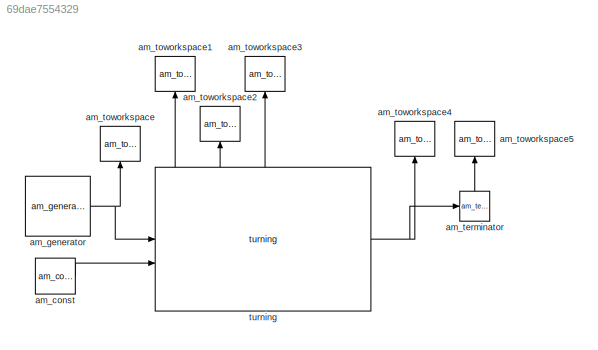
MODEL slx_69dae7554329
KIND model
CONFIG AbsTol = auto
CONFIG EnableMultiTasking = off
CONFIG FixedStep = auto
CONFIG MaxStep = auto
CONFIG MinStep = auto
CONFIG RelTol = 1e-3
CONFIG SampleTimeConstraint = Unconstrained
CONFIG SolverName = VariableStepAuto
CONFIG StartTime = 0.0
CONFIG StopTime = 10.0
BLOCK [Reference] am_const  REF=StdLib/am_const
  SourceBlock = StdLib/am_const
  SourceType = Const
BLOCK [Reference] am_generator  REF=StdLib/am_generator
  SourceBlock = StdLib/am_generator
  SourceType = Generator
BLOCK [Reference] am_terminator  REF=StdLib/am_terminator
  SourceBlock = StdLib/am_terminator
  SourceType = Terminator
BLOCK [Reference] am_toworkspace  REF=StdLib/am_toworkspace
  NameLocation = right
  SourceBlock = StdLib/am_toworkspace
  SourceType = ToWorkspace
BLOCK [Reference] am_toworkspace1  REF=StdLib/am_toworkspace
  NameLocation = right
  SourceBlock = StdLib/am_toworkspace
  SourceType = ToWorkspace
BLOCK [Reference] am_toworkspace2  REF=StdLib/am_toworkspace
  NameLocation = right
  SourceBlock = StdLib/am_toworkspace
  SourceType = ToWorkspace
BLOCK [Reference] am_toworkspace3  REF=StdLib/am_toworkspace
  NameLocation = right
  SourceBlock = StdLib/am_toworkspace
  SourceType = ToWorkspace
BLOCK [Reference] am_toworkspace4  REF=StdLib/am_toworkspace
  NameLocation = right
  SourceBlock = StdLib/am_toworkspace
  SourceType = ToWorkspace
BLOCK [Reference] am_toworkspace5  REF=StdLib/am_toworkspace
  NameLocation = right
  SourceBlock = StdLib/am_toworkspace
  SourceType = ToWorkspace
BLOCK [Reference] turning  REF=ProductionLinePLib/turning
  SourceBlock = ProductionLinePLib/turning
LINE am_const:1 -> turning:2
NET am_generator:1 -> am_toworkspace:1, turning:1
LINE am_terminator:1 -> am_toworkspace5:1
NET turning:1 -> am_terminator:1, am_toworkspace4:1
LINE turning:3 -> am_toworkspace1:1
LINE turning:4 -> am_toworkspace2:1
LINE turning:5 -> am_toworkspace3:1
note: NET lines group one-source signal fan-out (src -> all destinations, sorted); 1:1 wires keep LINE
